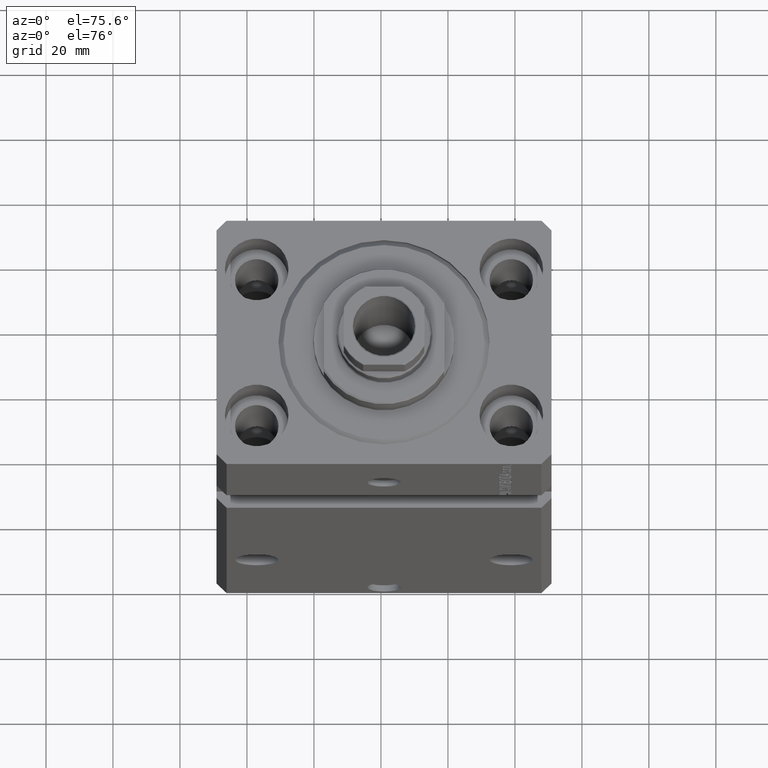
[diagram: clean part render]
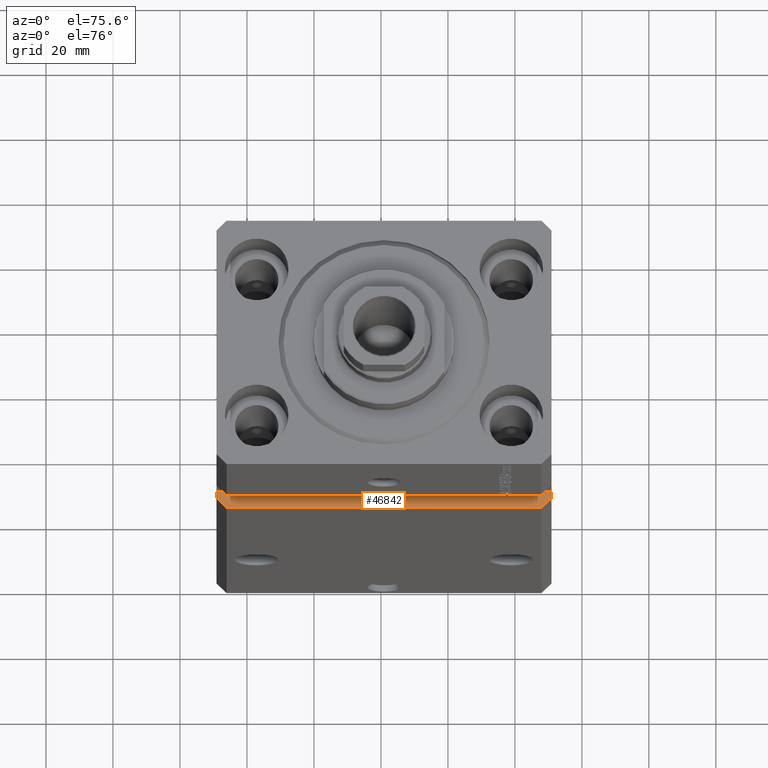
[diagram: same view with one face highlighted and labeled with its STEP entity id]
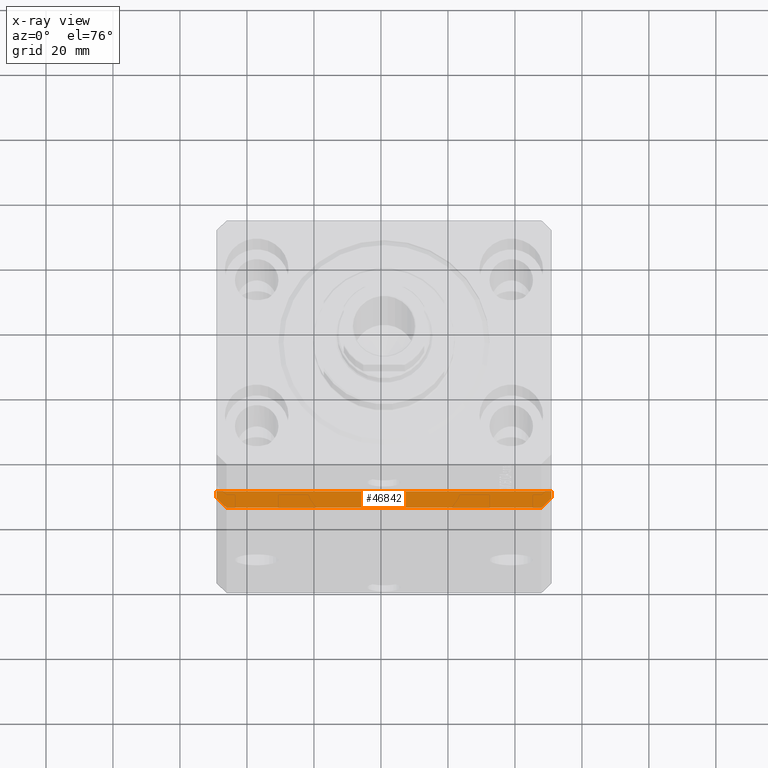
[diagram: x-ray of the same camera — body ghosted, the highlighted face saturated]
A machine part, auxiliary view. The second image highlights one B-rep face of the part: STEP entity #46842.
The next image is the same camera in x-ray: the body ghosted, the highlighted face saturated — about 0% of this face is hidden behind the body in this view.
In plain terms, the highlighted planar face has unit normal (0, 0, -1).
Its self-contained STEP definition (entity closure, byte-faithful):
#345 = DIRECTION ( 'NONE',  ( 1.387778780781445182E-16, 1.632144020667341874E-32, -1.000000000000000000 ) ) ;
#392 = VECTOR ( 'NONE', #24353, 1000.000000000000000 ) ;
#2602 = LINE ( 'NONE', #31855, #41437 ) ;
#3982 = CARTESIAN_POINT ( 'NONE',  ( -50.00000000000002842, -32.50000000000000711, -52.50000000000000000 ) ) ;
#4244 = PLANE ( 'NONE',  #15762 ) ;
#6418 = ORIENTED_EDGE ( 'NONE', *, *, #8015, .F. ) ;
#6818 = LINE ( 'NONE', #44822, #39914 ) ;
#7130 = VERTEX_POINT ( 'NONE', #19436 ) ;
#7391 = DIRECTION ( 'NONE',  ( 1.176083712526788232E-16, -1.000000000000000000, -0.000000000000000000 ) ) ;
#8015 = EDGE_CURVE ( 'NONE', #7130, #31743, #2602, .T. ) ;
#8114 = LINE ( 'NONE', #3982, #43921 ) ;
#8378 = CARTESIAN_POINT ( 'NONE',  ( -46.99999999999998579, -37.50000000000000711, -52.50000000000000000 ) ) ;
#8623 = EDGE_CURVE ( 'NONE', #25147, #8998, #6818, .T. ) ;
#8998 = VERTEX_POINT ( 'NONE', #39804 ) ;
#10721 = EDGE_LOOP ( 'NONE', ( #38891, #6418, #45627, #13654, #18338, #15032 ) ) ;
#11449 = DIRECTION ( 'NONE',  ( 1.000000000000000000, 1.387778780781445182E-16, 1.387778780781445182E-16 ) ) ;
#13654 = ORIENTED_EDGE ( 'NONE', *, *, #16609, .T. ) ;
#14684 = EDGE_CURVE ( 'NONE', #45382, #7130, #28253, .T. ) ;
#15032 = ORIENTED_EDGE ( 'NONE', *, *, #8623, .T. ) ;
#15762 = AXIS2_PLACEMENT_3D ( 'NONE', #23246, #345, #33974 ) ;
#16609 = EDGE_CURVE ( 'NONE', #45382, #23560, #8114, .T. ) ;
#16753 = DIRECTION ( 'NONE',  ( 1.176083712526788232E-16, -1.000000000000000000, -0.000000000000000000 ) ) ;
#16811 = CARTESIAN_POINT ( 'NONE',  ( 46.99999999999999289, -37.50000000000001421, -52.49999999999997868 ) ) ;
#18338 = ORIENTED_EDGE ( 'NONE', *, *, #31845, .T. ) ;
#19335 = FACE_OUTER_BOUND ( 'NONE', #10721, .T. ) ;
#19436 = CARTESIAN_POINT ( 'NONE',  ( 49.99999999999999289, -32.49999999999999289, -52.49999999999998579 ) ) ;
#19986 = LINE ( 'NONE', #16811, #28740 ) ;
#20454 = CARTESIAN_POINT ( 'NONE',  ( -50.00000000000002842, -32.50000000000000711, -52.50000000000000000 ) ) ;
#22149 = LINE ( 'NONE', #41628, #39690 ) ;
#23246 = CARTESIAN_POINT ( 'NONE',  ( -50.00000000000002842, -32.50000000000000711, -52.50000000000000000 ) ) ;
#23560 = VERTEX_POINT ( 'NONE', #47556 ) ;
#24353 = DIRECTION ( 'NONE',  ( 1.000000000000000000, 1.387778780781445182E-16, 1.387778780781445182E-16 ) ) ;
#25147 = VERTEX_POINT ( 'NONE', #8378 ) ;
#26534 = CARTESIAN_POINT ( 'NONE',  ( -50.00000000000002842, -32.50000000000000711, -52.50000000000000000 ) ) ;
#27029 = EDGE_CURVE ( 'NONE', #8998, #31743, #19986, .T. ) ;
#28253 = LINE ( 'NONE', #20454, #392 ) ;
#28740 = VECTOR ( 'NONE', #42631, 1000.000000000000000 ) ;
#28984 = CARTESIAN_POINT ( 'NONE',  ( 49.99999999999999289, -34.50000000000001421, -52.49999999999998579 ) ) ;
#31743 = VERTEX_POINT ( 'NONE', #28984 ) ;
#31845 = EDGE_CURVE ( 'NONE', #23560, #25147, #22149, .T. ) ;
#31855 = CARTESIAN_POINT ( 'NONE',  ( 49.99999999999999289, -32.49999999999999289, -52.49999999999998579 ) ) ;
#33594 = DIRECTION ( 'NONE',  ( 0.7071067811865491270, -0.7071067811865459074, 9.813077866773612973E-17 ) ) ;
#33974 = DIRECTION ( 'NONE',  ( -1.000000000000000000, 0.000000000000000000, -1.387778780781445182E-16 ) ) ;
#38891 = ORIENTED_EDGE ( 'NONE', *, *, #27029, .T. ) ;
#39690 = VECTOR ( 'NONE', #33594, 1000.000000000000114 ) ;
#39804 = CARTESIAN_POINT ( 'NONE',  ( 47.00000000000000000, -37.49999999999999289, -52.49999999999998579 ) ) ;
#39914 = VECTOR ( 'NONE', #11449, 1000.000000000000000 ) ;
#41437 = VECTOR ( 'NONE', #16753, 1000.000000000000000 ) ;
#41628 = CARTESIAN_POINT ( 'NONE',  ( -50.00000000000000711, -34.49999999999999289, -52.49999999999999289 ) ) ;
#42631 = DIRECTION ( 'NONE',  ( 0.7071067811865483499, 0.7071067811865467956, 9.813077866773603112E-17 ) ) ;
#43921 = VECTOR ( 'NONE', #7391, 1000.000000000000000 ) ;
#44822 = CARTESIAN_POINT ( 'NONE',  ( -50.00000000000002842, -37.50000000000000711, -52.50000000000000000 ) ) ;
#45382 = VERTEX_POINT ( 'NONE', #26534 ) ;
#45627 = ORIENTED_EDGE ( 'NONE', *, *, #14684, .F. ) ;
#46842 = ADVANCED_FACE ( 'NONE', ( #19335 ), #4244, .F. ) ;
#47556 = CARTESIAN_POINT ( 'NONE',  ( -50.00000000000002842, -34.50000000000000000, -52.50000000000000000 ) ) ;